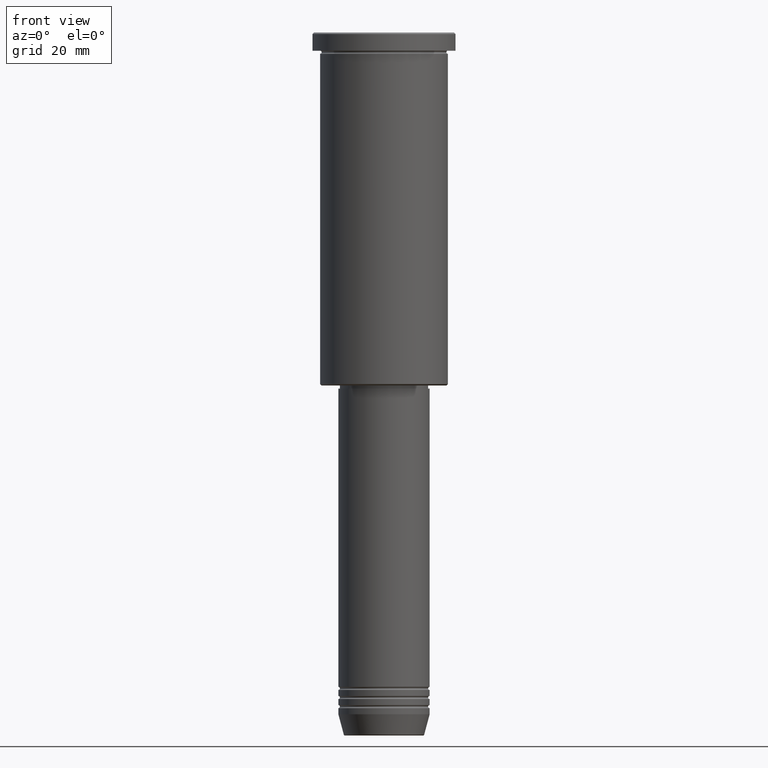
[diagram: clean part render]
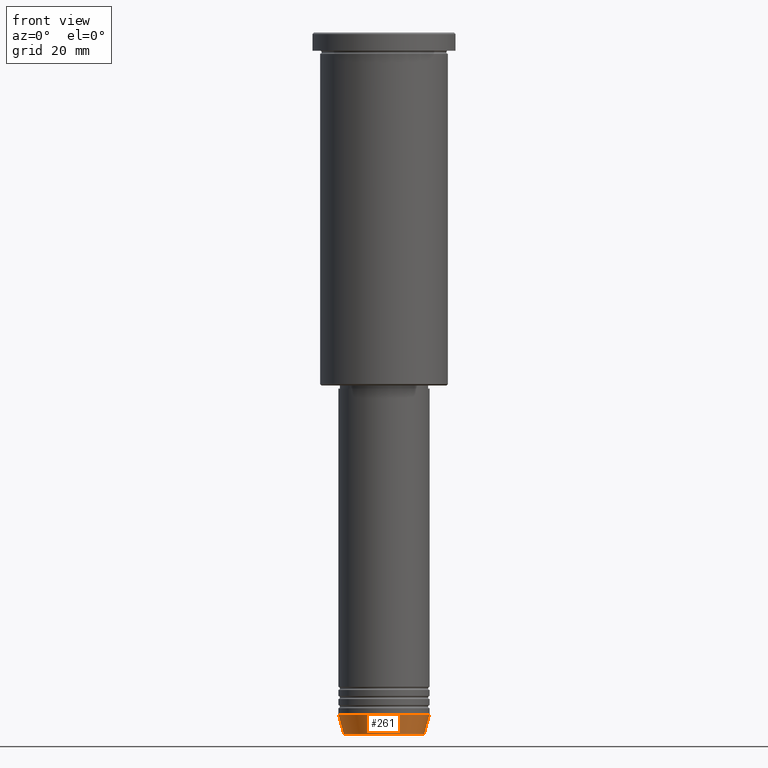
[diagram: same view with one face highlighted and labeled with its STEP entity id]
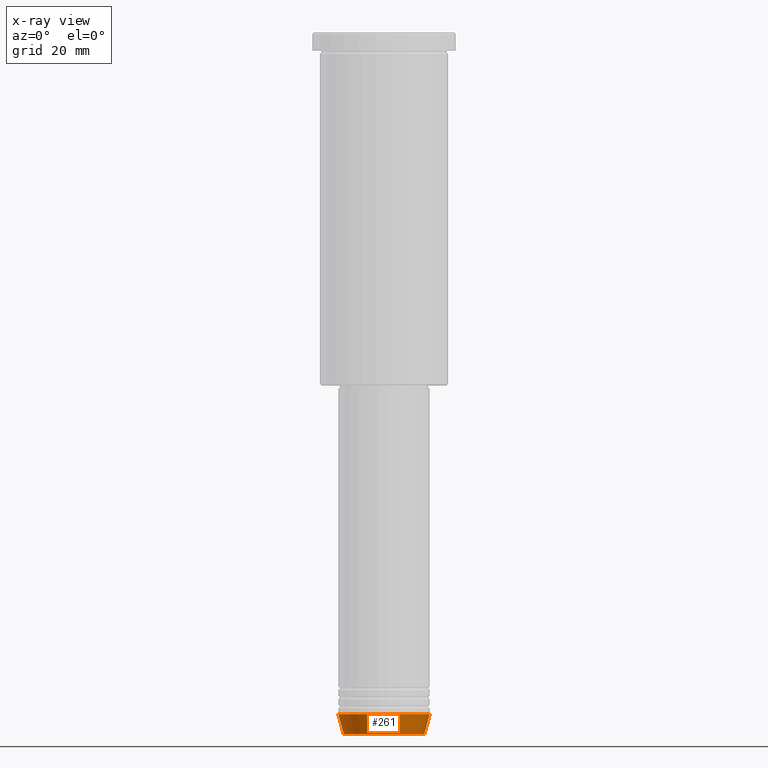
[diagram: x-ray of the same camera — body ghosted, the highlighted face saturated]
A machine part, front view. The second image highlights one B-rep face of the part: STEP entity #261.
The next image is the same camera in x-ray: the body ghosted, the highlighted face saturated — about 0% of this face is hidden behind the body in this view.
In plain terms, the highlighted conical surface has half-angle 15 deg.
Its self-contained STEP definition (entity closure, byte-faithful):
#28 = CARTESIAN_POINT ( 'NONE',  ( 15.00000000000000000, 0.000000000000000000, -224.0000000000000000 ) ) ;
#43 = VERTEX_POINT ( 'NONE', #564 ) ;
#117 = EDGE_LOOP ( 'NONE', ( #126, #420, #132, #675 ) ) ;
#126 = ORIENTED_EDGE ( 'NONE', *, *, #735, .F. ) ;
#132 = ORIENTED_EDGE ( 'NONE', *, *, #1132, .T. ) ;
#152 = CARTESIAN_POINT ( 'NONE',  ( -15.00000000000000000, 1.836970198721029589E-15, -224.0000000000000000 ) ) ;
#173 = VERTEX_POINT ( 'NONE', #1035 ) ;
#216 = EDGE_CURVE ( 'NONE', #43, #173, #961, .T. ) ;
#223 = CONICAL_SURFACE ( 'NONE', #1106, 15.00000000000000000, 0.2617993877991500740 ) ;
#254 = DIRECTION ( 'NONE',  ( 1.000000000000000000, 0.000000000000000000, 0.000000000000000000 ) ) ;
#257 = DIRECTION ( 'NONE',  ( 1.000000000000000000, 0.000000000000000000, 0.000000000000000000 ) ) ;
#261 = ADVANCED_FACE ( 'NONE', ( #900 ), #223, .T. ) ;
#280 = VECTOR ( 'NONE', #970, 1000.000000000000000 ) ;
#347 = DIRECTION ( 'NONE',  ( -0.000000000000000000, -0.000000000000000000, 1.000000000000000000 ) ) ;
#392 = AXIS2_PLACEMENT_3D ( 'NONE', #952, #562, #1108 ) ;
#420 = ORIENTED_EDGE ( 'NONE', *, *, #216, .T. ) ;
#424 = DIRECTION ( 'NONE',  ( 0.2588190451025213501, 0.000000000000000000, 0.9659258262890680902 ) ) ;
#496 = CARTESIAN_POINT ( 'NONE',  ( -15.00000000000000000, 1.836970198721029589E-15, -224.0000000000000000 ) ) ;
#502 = LINE ( 'NONE', #518, #797 ) ;
#518 = CARTESIAN_POINT ( 'NONE',  ( 15.00000000000000000, 0.000000000000000000, -224.0000000000000000 ) ) ;
#536 = CARTESIAN_POINT ( 'NONE',  ( 0.000000000000000000, 0.000000000000000000, -230.6294095225512422 ) ) ;
#562 = DIRECTION ( 'NONE',  ( -0.000000000000000000, -0.000000000000000000, 1.000000000000000000 ) ) ;
#564 = CARTESIAN_POINT ( 'NONE',  ( -13.22365507213719305, 1.728200442216588583E-15, -230.6294095225512422 ) ) ;
#602 = CIRCLE ( 'NONE', #392, 15.00000000000000000 ) ;
#647 = VERTEX_POINT ( 'NONE', #496 ) ;
#675 = ORIENTED_EDGE ( 'NONE', *, *, #1101, .F. ) ;
#713 = AXIS2_PLACEMENT_3D ( 'NONE', #536, #347, #254 ) ;
#735 = EDGE_CURVE ( 'NONE', #43, #647, #976, .T. ) ;
#797 = VECTOR ( 'NONE', #424, 1000.000000000000000 ) ;
#810 = CARTESIAN_POINT ( 'NONE',  ( 0.000000000000000000, 0.000000000000000000, -224.0000000000000000 ) ) ;
#900 = FACE_OUTER_BOUND ( 'NONE', #117, .T. ) ;
#952 = CARTESIAN_POINT ( 'NONE',  ( 0.000000000000000000, 0.000000000000000000, -224.0000000000000000 ) ) ;
#961 = CIRCLE ( 'NONE', #713, 13.22365507213719305 ) ;
#970 = DIRECTION ( 'NONE',  ( -0.2588190451025213501, 3.169619151431772337E-17, 0.9659258262890680902 ) ) ;
#976 = LINE ( 'NONE', #152, #280 ) ;
#977 = DIRECTION ( 'NONE',  ( -0.000000000000000000, -0.000000000000000000, 1.000000000000000000 ) ) ;
#1026 = VERTEX_POINT ( 'NONE', #28 ) ;
#1035 = CARTESIAN_POINT ( 'NONE',  ( 13.22365507213719305, 0.000000000000000000, -230.6294095225512422 ) ) ;
#1101 = EDGE_CURVE ( 'NONE', #647, #1026, #602, .T. ) ;
#1106 = AXIS2_PLACEMENT_3D ( 'NONE', #810, #977, #257 ) ;
#1108 = DIRECTION ( 'NONE',  ( 1.000000000000000000, 0.000000000000000000, 0.000000000000000000 ) ) ;
#1132 = EDGE_CURVE ( 'NONE', #173, #1026, #502, .T. ) ;